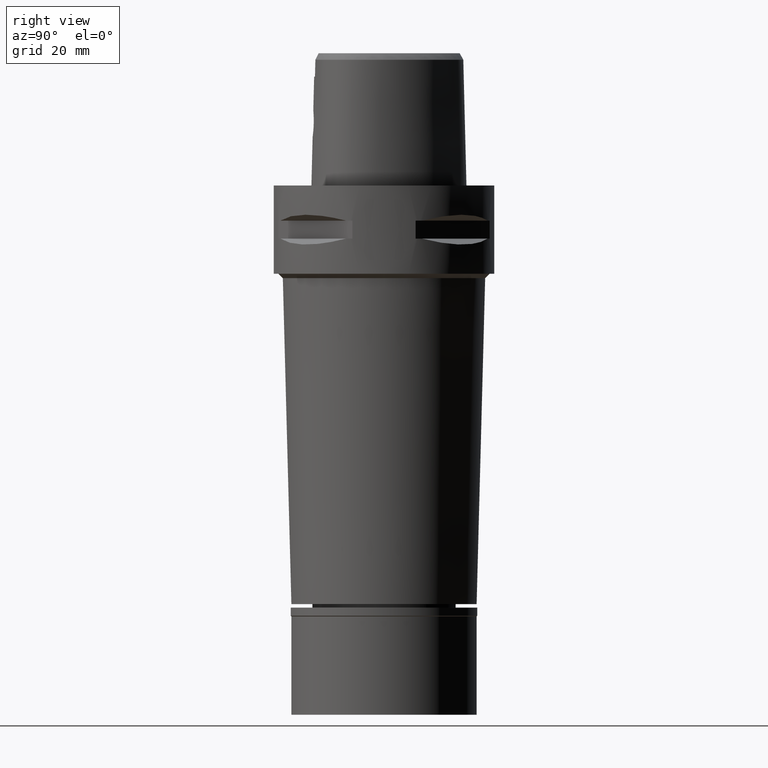
[diagram: clean part render]
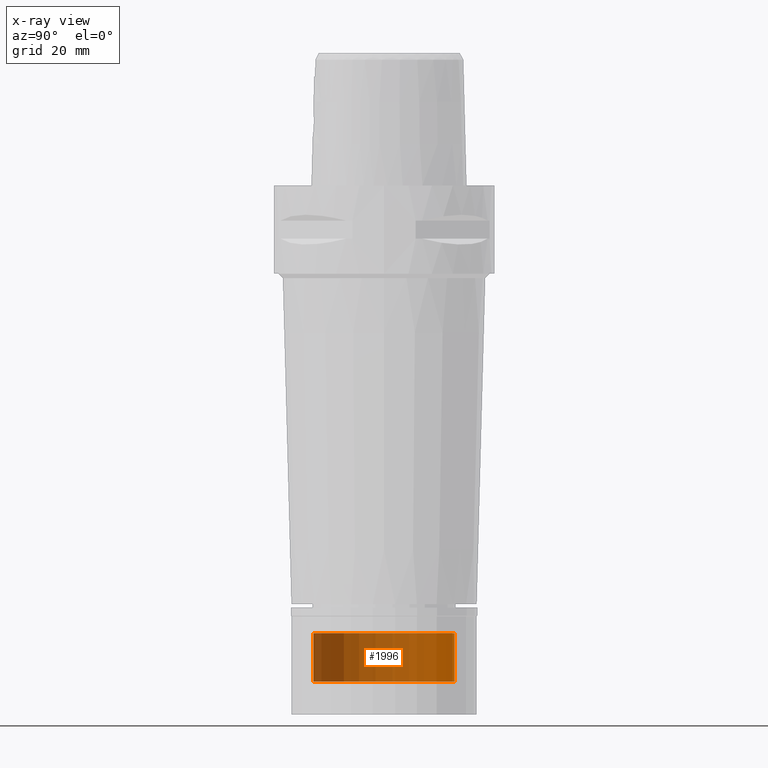
[diagram: x-ray — body ghosted, one internal face saturated and labeled with its STEP entity id]
A machine part, right view, then the same camera in x-ray: the body is ghosted and one INTERNAL B-rep face — a face not visible from any outside direction — is saturated and labeled: STEP entity #1996.
In plain terms, the highlighted cylindrical surface (partial cylindrical patch) has radius 16 mm, axis along (0, 0, -1).
Its self-contained STEP definition (entity closure, byte-faithful):
#66 = CARTESIAN_POINT ( 'NONE',  ( 0.0000000000000000000, 16.00000000000000000, -112.5000000000000000 ) ) ;
#138 = EDGE_CURVE ( 'NONE', #4791, #4045, #1615, .T. ) ;
#480 = CARTESIAN_POINT ( 'NONE',  ( 0.0000000000000000000, 16.00000000000000000, -101.5000000000000000 ) ) ;
#543 = FACE_OUTER_BOUND ( 'NONE', #944, .T. ) ;
#548 = DIRECTION ( 'NONE',  ( 0.0000000000000000000, 0.0000000000000000000, -1.000000000000000000 ) ) ;
#603 = CIRCLE ( 'NONE', #4458, 16.00000000000000000 ) ;
#678 = ORIENTED_EDGE ( 'NONE', *, *, #4727, .F. ) ;
#895 = AXIS2_PLACEMENT_3D ( 'NONE', #2474, #548, #3927 ) ;
#944 = EDGE_LOOP ( 'NONE', ( #3239, #678, #1509, #3982 ) ) ;
#1086 = VERTEX_POINT ( 'NONE', #3694 ) ;
#1186 = EDGE_CURVE ( 'NONE', #4638, #4791, #4272, .T. ) ;
#1252 = LINE ( 'NONE', #4573, #4290 ) ;
#1307 = CARTESIAN_POINT ( 'NONE',  ( 0.0000000000000000000, 16.00000000000000000, -101.5000000000000000 ) ) ;
#1509 = ORIENTED_EDGE ( 'NONE', *, *, #1186, .T. ) ;
#1615 = LINE ( 'NONE', #1307, #3422 ) ;
#1642 = DIRECTION ( 'NONE',  ( 0.0000000000000000000, 1.000000000000000000, 0.0000000000000000000 ) ) ;
#1996 = ADVANCED_FACE ( 'NONE', ( #543 ), #3109, .T. ) ;
#2474 = CARTESIAN_POINT ( 'NONE',  ( 0.0000000000000000000, 1.293533181598999990E-14, -101.5000000000000000 ) ) ;
#3109 = CYLINDRICAL_SURFACE ( 'NONE', #4187, 16.00000000000000000 ) ;
#3159 = DIRECTION ( 'NONE',  ( 0.0000000000000000000, 0.0000000000000000000, -1.000000000000000000 ) ) ;
#3239 = ORIENTED_EDGE ( 'NONE', *, *, #4618, .T. ) ;
#3422 = VECTOR ( 'NONE', #3887, 1000.000000000000000 ) ;
#3486 = DIRECTION ( 'NONE',  ( 0.0000000000000000000, 0.0000000000000000000, -1.000000000000000000 ) ) ;
#3497 = CARTESIAN_POINT ( 'NONE',  ( 0.0000000000000000000, -16.00000000000000000, -101.5000000000000000 ) ) ;
#3694 = CARTESIAN_POINT ( 'NONE',  ( 0.0000000000000000000, -16.00000000000000000, -112.5000000000000000 ) ) ;
#3869 = DIRECTION ( 'NONE',  ( 0.0000000000000000000, -1.000000000000000000, 0.0000000000000000000 ) ) ;
#3887 = DIRECTION ( 'NONE',  ( 0.0000000000000000000, 0.0000000000000000000, -1.000000000000000000 ) ) ;
#3889 = CARTESIAN_POINT ( 'NONE',  ( 0.0000000000000000000, 1.293533181598999990E-14, -112.5000000000000000 ) ) ;
#3927 = DIRECTION ( 'NONE',  ( 0.0000000000000000000, -1.000000000000000000, 0.0000000000000000000 ) ) ;
#3982 = ORIENTED_EDGE ( 'NONE', *, *, #138, .T. ) ;
#4045 = VERTEX_POINT ( 'NONE', #66 ) ;
#4187 = AXIS2_PLACEMENT_3D ( 'NONE', #4310, #3159, #3869 ) ;
#4272 = CIRCLE ( 'NONE', #895, 16.00000000000000000 ) ;
#4290 = VECTOR ( 'NONE', #3486, 1000.000000000000000 ) ;
#4310 = CARTESIAN_POINT ( 'NONE',  ( 0.0000000000000000000, 1.293533181598999990E-14, 5.625000000000000000 ) ) ;
#4458 = AXIS2_PLACEMENT_3D ( 'NONE', #3889, #4581, #1642 ) ;
#4573 = CARTESIAN_POINT ( 'NONE',  ( 0.0000000000000000000, -16.00000000000000000, -101.5000000000000000 ) ) ;
#4581 = DIRECTION ( 'NONE',  ( 0.0000000000000000000, 0.0000000000000000000, 1.000000000000000000 ) ) ;
#4618 = EDGE_CURVE ( 'NONE', #4045, #1086, #603, .T. ) ;
#4638 = VERTEX_POINT ( 'NONE', #3497 ) ;
#4727 = EDGE_CURVE ( 'NONE', #4638, #1086, #1252, .T. ) ;
#4791 = VERTEX_POINT ( 'NONE', #480 ) ;